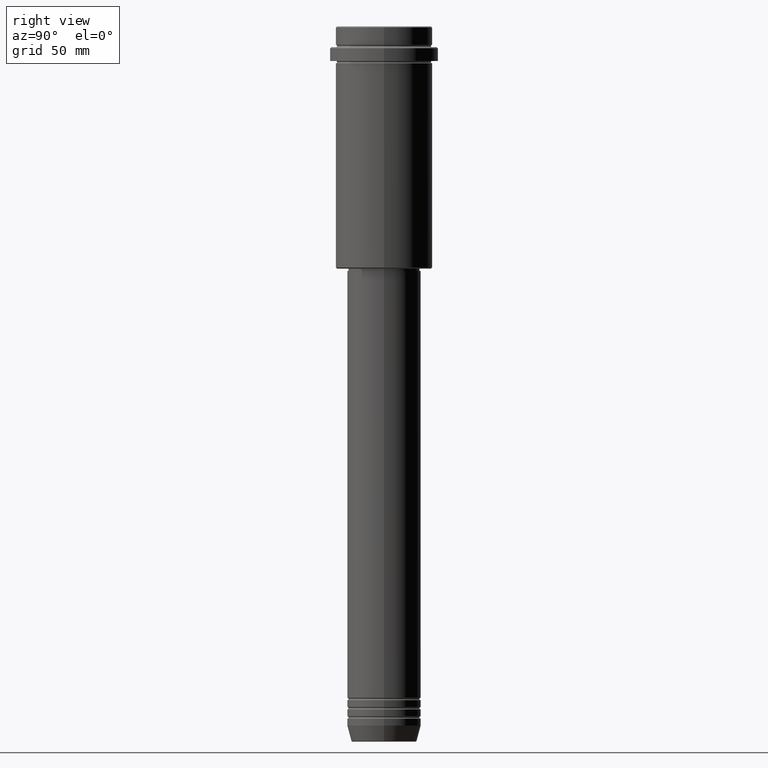
[diagram: clean part render]
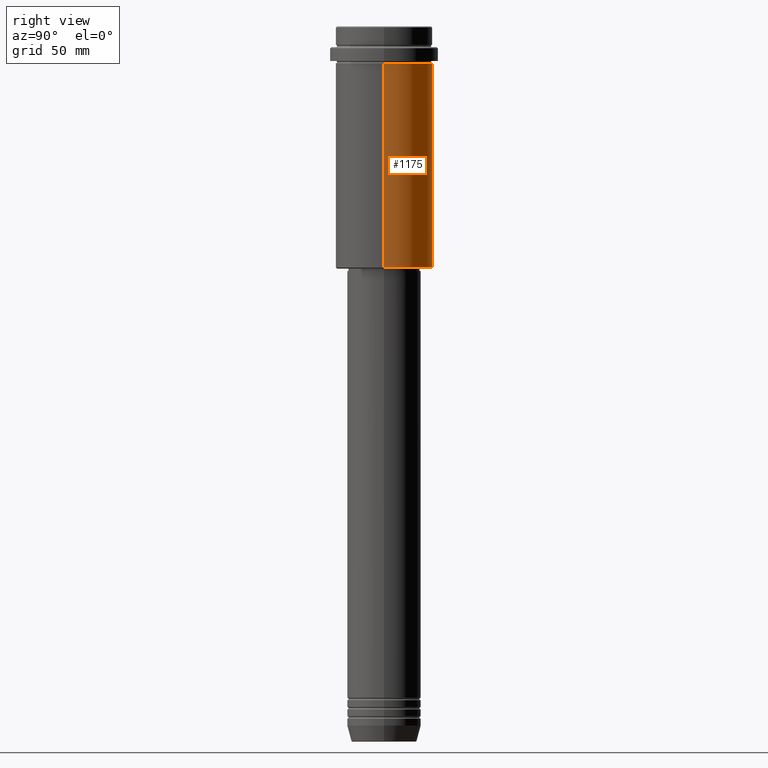
[diagram: same view with one face highlighted and labeled with its STEP entity id]
A machine part, right view. The second image highlights one B-rep face of the part: STEP entity #1175.
In plain terms, the highlighted cylindrical surface (partial cylindrical patch) has radius 21 mm, axis along (-0, -0, 1).
Its self-contained STEP definition (entity closure, byte-faithful):
#32 = ORIENTED_EDGE ( 'NONE', *, *, #1274, .T. ) ;
#46 = CARTESIAN_POINT ( 'NONE',  ( -21.00000000000000000, 2.571758278209441661E-15, 0.000000000000000000 ) ) ;
#65 = LINE ( 'NONE', #1369, #1015 ) ;
#77 = DIRECTION ( 'NONE',  ( 1.000000000000000000, 0.000000000000000000, 0.000000000000000000 ) ) ;
#91 = CIRCLE ( 'NONE', #219, 21.00000000000000000 ) ;
#105 = AXIS2_PLACEMENT_3D ( 'NONE', #585, #292, #184 ) ;
#162 = LINE ( 'NONE', #46, #997 ) ;
#164 = ORIENTED_EDGE ( 'NONE', *, *, #477, .F. ) ;
#184 = DIRECTION ( 'NONE',  ( 1.000000000000000000, 0.000000000000000000, 0.000000000000000000 ) ) ;
#202 = ORIENTED_EDGE ( 'NONE', *, *, #568, .F. ) ;
#219 = AXIS2_PLACEMENT_3D ( 'NONE', #603, #1377, #390 ) ;
#292 = DIRECTION ( 'NONE',  ( -0.000000000000000000, -0.000000000000000000, 1.000000000000000000 ) ) ;
#348 = CARTESIAN_POINT ( 'NONE',  ( 21.00000000000000000, 0.000000000000000000, -16.00000000000000355 ) ) ;
#381 = CYLINDRICAL_SURFACE ( 'NONE', #1251, 21.00000000000000000 ) ;
#390 = DIRECTION ( 'NONE',  ( -1.000000000000000000, 0.000000000000000000, 0.000000000000000000 ) ) ;
#477 = EDGE_CURVE ( 'NONE', #1070, #553, #721, .T. ) ;
#481 = DIRECTION ( 'NONE',  ( -0.000000000000000000, -0.000000000000000000, 1.000000000000000000 ) ) ;
#499 = DIRECTION ( 'NONE',  ( -0.000000000000000000, -0.000000000000000000, 1.000000000000000000 ) ) ;
#553 = VERTEX_POINT ( 'NONE', #1253 ) ;
#566 = EDGE_LOOP ( 'NONE', ( #32, #1411, #164, #202 ) ) ;
#568 = EDGE_CURVE ( 'NONE', #586, #1070, #65, .T. ) ;
#585 = CARTESIAN_POINT ( 'NONE',  ( 0.000000000000000000, 0.000000000000000000, -16.00000000000000355 ) ) ;
#586 = VERTEX_POINT ( 'NONE', #1404 ) ;
#602 = DIRECTION ( 'NONE',  ( -0.000000000000000000, -0.000000000000000000, 1.000000000000000000 ) ) ;
#603 = CARTESIAN_POINT ( 'NONE',  ( 0.000000000000000000, 0.000000000000000000, -104.5000000000000853 ) ) ;
#721 = CIRCLE ( 'NONE', #105, 21.00000000000000000 ) ;
#869 = VERTEX_POINT ( 'NONE', #1265 ) ;
#997 = VECTOR ( 'NONE', #499, 1000.000000000000000 ) ;
#1015 = VECTOR ( 'NONE', #481, 1000.000000000000000 ) ;
#1070 = VERTEX_POINT ( 'NONE', #348 ) ;
#1175 = ADVANCED_FACE ( 'NONE', ( #1192 ), #381, .T. ) ;
#1192 = FACE_OUTER_BOUND ( 'NONE', #566, .T. ) ;
#1251 = AXIS2_PLACEMENT_3D ( 'NONE', #1268, #602, #77 ) ;
#1253 = CARTESIAN_POINT ( 'NONE',  ( -21.00000000000000000, 2.571758278209441661E-15, -16.00000000000000355 ) ) ;
#1265 = CARTESIAN_POINT ( 'NONE',  ( -21.00000000000000000, 2.571758278209441661E-15, -104.5000000000000853 ) ) ;
#1268 = CARTESIAN_POINT ( 'NONE',  ( 0.000000000000000000, 0.000000000000000000, 0.000000000000000000 ) ) ;
#1274 = EDGE_CURVE ( 'NONE', #586, #869, #91, .T. ) ;
#1369 = CARTESIAN_POINT ( 'NONE',  ( 21.00000000000000000, 0.000000000000000000, 0.000000000000000000 ) ) ;
#1373 = EDGE_CURVE ( 'NONE', #869, #553, #162, .T. ) ;
#1377 = DIRECTION ( 'NONE',  ( -0.000000000000000000, -0.000000000000000000, 1.000000000000000000 ) ) ;
#1404 = CARTESIAN_POINT ( 'NONE',  ( 21.00000000000000000, 0.000000000000000000, -104.5000000000000853 ) ) ;
#1411 = ORIENTED_EDGE ( 'NONE', *, *, #1373, .T. ) ;